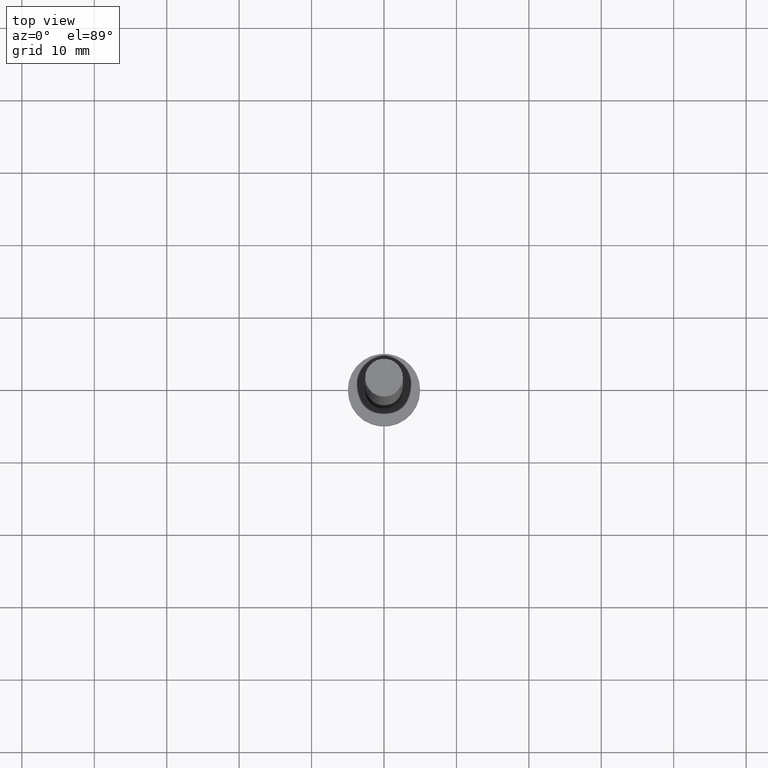
[diagram: clean part render]
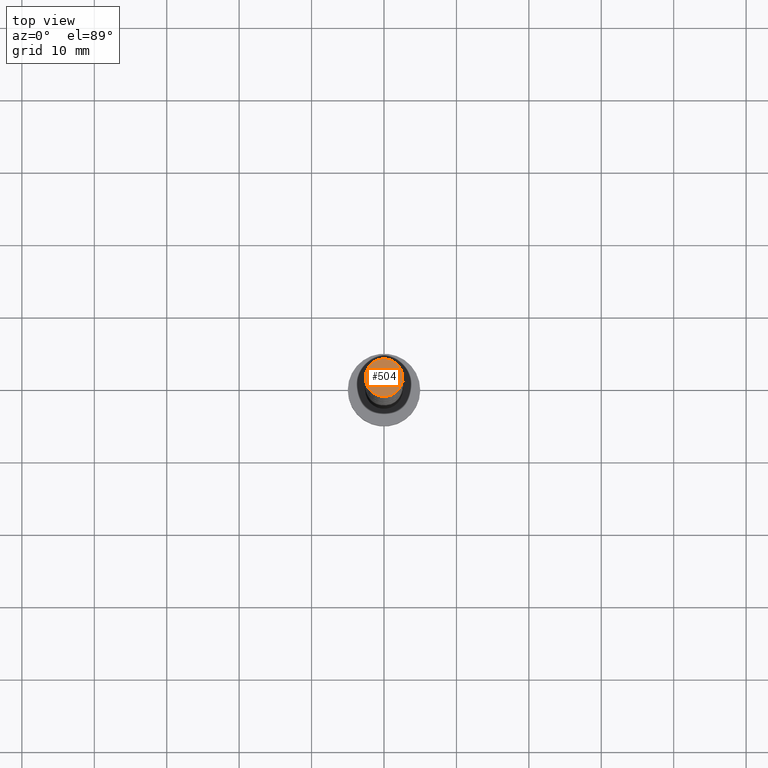
[diagram: same view with one face highlighted and labeled with its STEP entity id]
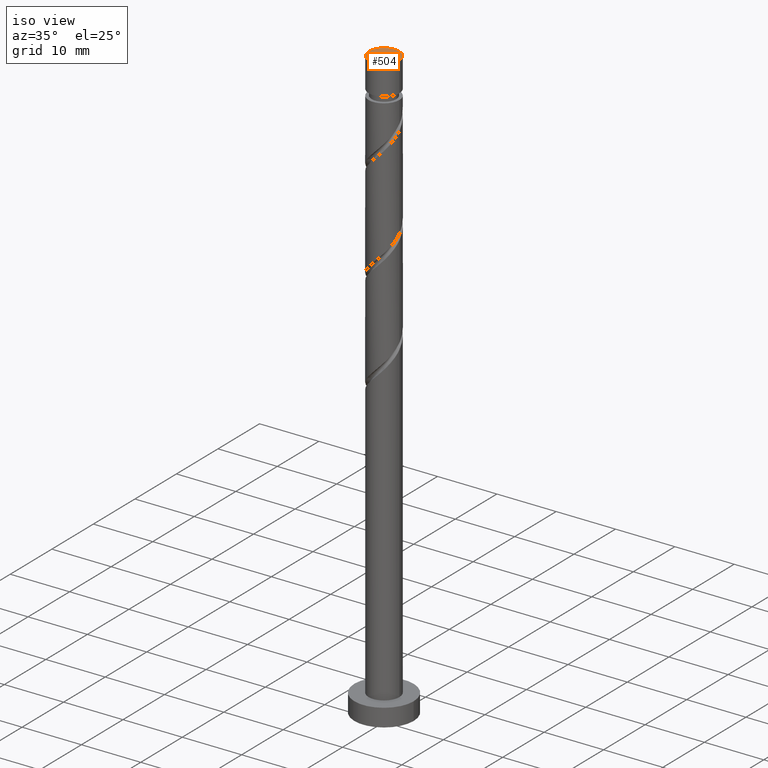
[diagram: same view with one face highlighted and labeled with its STEP entity id]
A machine part, top view. The second image highlights one B-rep face of the part: STEP entity #504.
A second angle (iso view) of the same face is appended — the face is thin or edge-on in the first view.
In plain terms, the highlighted planar face has unit normal (0, 0, 1).
Its self-contained STEP definition (entity closure, byte-faithful):
#87 = DIRECTION ( 'NONE',  ( 1.000000000000000000, 0.000000000000000000, 0.000000000000000000 ) ) ;
#121 = PLANE ( 'NONE',  #1247 ) ;
#151 = EDGE_CURVE ( 'NONE', #1164, #616, #1114, .T. ) ;
#169 = CARTESIAN_POINT ( 'NONE',  ( 0.000000000000000000, 0.000000000000000000, 100.0000000000000000 ) ) ;
#207 = CARTESIAN_POINT ( 'NONE',  ( 2.600000000000000089, 3.184081677783117698E-16, 100.0000000000000000 ) ) ;
#272 = FACE_OUTER_BOUND ( 'NONE', #585, .T. ) ;
#358 = CARTESIAN_POINT ( 'NONE',  ( -2.600000000000000089, 0.000000000000000000, 100.0000000000000000 ) ) ;
#376 = DIRECTION ( 'NONE',  ( 1.000000000000000000, 0.000000000000000000, -0.000000000000000000 ) ) ;
#504 = ADVANCED_FACE ( 'NONE', ( #272 ), #121, .T. ) ;
#536 = ORIENTED_EDGE ( 'NONE', *, *, #151, .T. ) ;
#579 = DIRECTION ( 'NONE',  ( 0.000000000000000000, 0.000000000000000000, 1.000000000000000000 ) ) ;
#585 = EDGE_LOOP ( 'NONE', ( #1424, #536 ) ) ;
#616 = VERTEX_POINT ( 'NONE', #358 ) ;
#727 = DIRECTION ( 'NONE',  ( 0.000000000000000000, 0.000000000000000000, 1.000000000000000000 ) ) ;
#799 = CIRCLE ( 'NONE', #1338, 2.600000000000000089 ) ;
#811 = AXIS2_PLACEMENT_3D ( 'NONE', #169, #727, #1278 ) ;
#1114 = CIRCLE ( 'NONE', #811, 2.600000000000000089 ) ;
#1126 = DIRECTION ( 'NONE',  ( 0.000000000000000000, 0.000000000000000000, 1.000000000000000000 ) ) ;
#1134 = CARTESIAN_POINT ( 'NONE',  ( 0.000000000000000000, 0.000000000000000000, 100.0000000000000000 ) ) ;
#1164 = VERTEX_POINT ( 'NONE', #207 ) ;
#1247 = AXIS2_PLACEMENT_3D ( 'NONE', #1276, #579, #376 ) ;
#1276 = CARTESIAN_POINT ( 'NONE',  ( 0.000000000000000000, 0.000000000000000000, 100.0000000000000000 ) ) ;
#1278 = DIRECTION ( 'NONE',  ( 1.000000000000000000, 0.000000000000000000, 0.000000000000000000 ) ) ;
#1338 = AXIS2_PLACEMENT_3D ( 'NONE', #1134, #1126, #87 ) ;
#1424 = ORIENTED_EDGE ( 'NONE', *, *, #1429, .T. ) ;
#1429 = EDGE_CURVE ( 'NONE', #616, #1164, #799, .T. ) ;